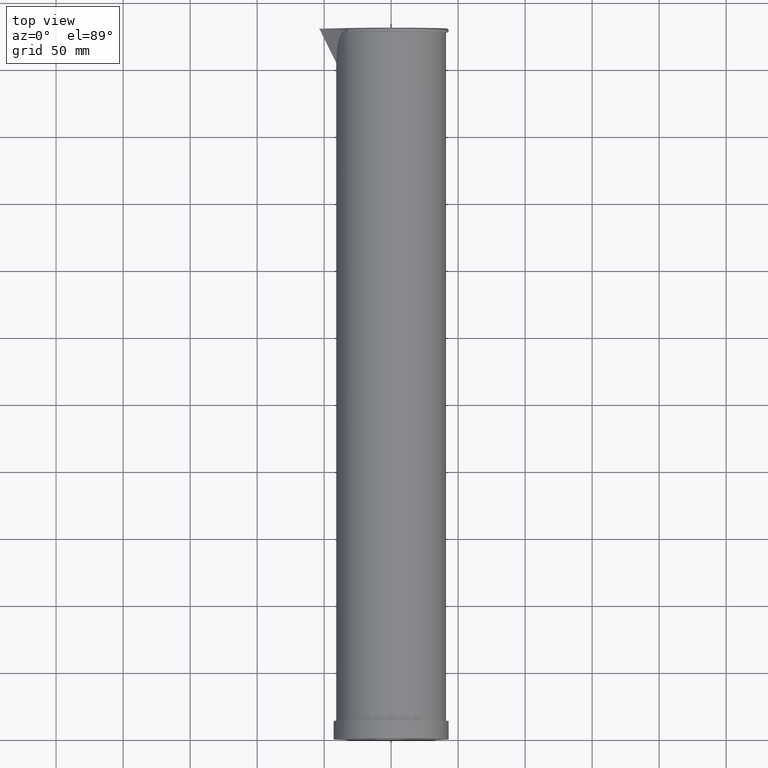
[diagram: clean part render]
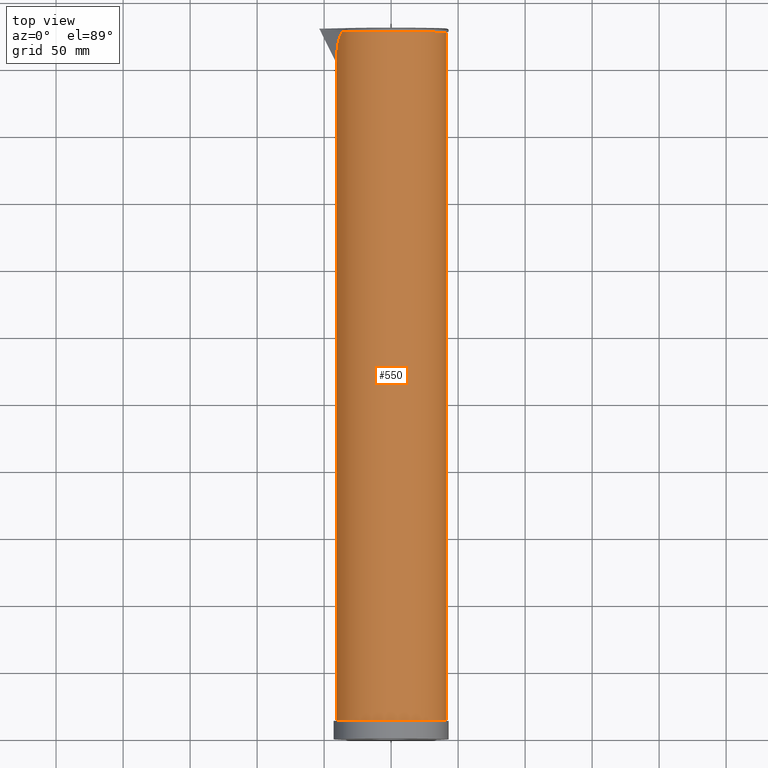
[diagram: same view with one face highlighted and labeled with its STEP entity id]
A machine part, top view. The second image highlights one B-rep face of the part: STEP entity #550.
In plain terms, the highlighted cylindrical surface (bore or boss wall) has radius 40.9575 mm, axis along (0, 1, 0).
Its self-contained STEP definition (entity closure, byte-faithful):
#461=CARTESIAN_POINT('',(84.763577732862657,36.315100106766323,10.691839503963482));
#462=DIRECTION('',(0.0,0.0,1.0));
#463=DIRECTION('',(-1.0,0.0,0.0));
#464=AXIS2_PLACEMENT_3D('',#461,#462,#463);
#465=CYLINDRICAL_SURFACE('',#464,1.612499998753373);
#466=CARTESIAN_POINT('',(86.376077731616036,36.315100106766323,6.972227477893022));
#467=VERTEX_POINT('',#466);
#468=CARTESIAN_POINT('',(84.763577732862657,36.315100106766323,6.972227477893022));
#469=DIRECTION('',(0.0,0.0,1.0));
#470=DIRECTION('',(-1.0,0.0,0.0));
#471=AXIS2_PLACEMENT_3D('',#468,#469,#470);
#472=CIRCLE('',#471,1.612499998753373);
#473=EDGE_CURVE('',#467,#467,#472,.T.);
#474=ORIENTED_EDGE('',*,*,#473,.T.);
#475=EDGE_LOOP('',(#474));
#476=FACE_OUTER_BOUND('',#475,.T.);
#477=CARTESIAN_POINT('',(83.503457035888871,35.308992719398965,27.194482091736973));
#478=VERTEX_POINT('',#477);
#479=CARTESIAN_POINT('',(83.503457034692588,37.321207492476766,27.194482091736973));
#480=VERTEX_POINT('',#479);
#481=CARTESIAN_POINT('',(84.763577732862657,36.315100106614423,27.194482091736973));
#482=DIRECTION('',(0.0,0.0,1.0));
#483=DIRECTION('',(0.0,1.0,0.0));
#484=AXIS2_PLACEMENT_3D('',#481,#482,#483);
#485=CIRCLE('',#484,1.612499998601471);
#486=EDGE_CURVE('',#478,#480,#485,.T.);
#487=ORIENTED_EDGE('',*,*,#486,.F.);
#488=CARTESIAN_POINT('',(83.362633159531455,35.516657514866367,27.204798331771730));
#489=VERTEX_POINT('',#488);
#490=CARTESIAN_POINT('',(83.362633166210372,35.516657518255982,27.204798326573773));
#491=CARTESIAN_POINT('',(83.384257401159573,35.478715711423483,27.207841541845045));
#492=CARTESIAN_POINT('',(83.403400819535776,35.447759850098421,27.207303572955915));
#493=CARTESIAN_POINT('',(83.453629773279872,35.373828039972018,27.199701085255104));
#494=CARTESIAN_POINT('',(83.478524412708879,35.340220116022749,27.194482091736969));
#495=CARTESIAN_POINT('',(83.503457035954980,35.308992719255158,27.194482091736969));
#496=B_SPLINE_CURVE_WITH_KNOTS('',3,(#490,#491,#492,#493,#494,#495),.UNSPECIFIED.,.F.,.U.,(4,2,4),(-0.641390351329199,-0.304493710892186,0.0),.UNSPECIFIED.);
#497=EDGE_CURVE('',#489,#478,#496,.T.);
#498=ORIENTED_EDGE('',*,*,#497,.F.);
#499=CARTESIAN_POINT('',(83.324302946331471,35.588020788972216,27.201163563481281));
#500=VERTEX_POINT('',#499);
#501=CARTESIAN_POINT('',(83.324302946201797,35.588020788904814,27.201163563346860));
#502=CARTESIAN_POINT('',(83.330390111432521,35.575971067198253,27.201333920342627));
#503=CARTESIAN_POINT('',(83.336642957702935,35.563970737719366,27.201751142308577));
#504=CARTESIAN_POINT('',(83.349413328184227,35.540195257857839,27.202986725818274));
#505=CARTESIAN_POINT('',(83.355959020542457,35.528367950883329,27.203808239504230));
#506=CARTESIAN_POINT('',(83.362633165143436,35.516657520128035,27.204798326424012));
#507=B_SPLINE_CURVE_WITH_KNOTS('',3,(#501,#502,#503,#504,#505,#506),.UNSPECIFIED.,.F.,.U.,(4,2,4),(-0.205882854644597,-0.102984776770283,0.0),.UNSPECIFIED.);
#508=EDGE_CURVE('',#500,#489,#507,.T.);
#509=ORIENTED_EDGE('',*,*,#508,.F.);
#510=CARTESIAN_POINT('',(83.151077734255651,36.315100107620090,26.308479159736304));
#511=VERTEX_POINT('',#510);
#512=CARTESIAN_POINT('',(84.763577732862657,36.315100106614423,23.045924579121543));
#513=DIRECTION('',(0.714574982270093,0.603862678607960,0.353174829366584));
#514=DIRECTION('',(0.269753532083915,0.227959408725256,-0.935557341856652));
#515=AXIS2_PLACEMENT_3D('',#512,#513,#514);
#516=ELLIPSE('',#515,4.565727408981762,1.612499998601471);
#517=EDGE_CURVE('',#511,#500,#516,.T.);
#518=ORIENTED_EDGE('',*,*,#517,.F.);
#519=CARTESIAN_POINT('',(83.324302948644998,37.042179428942951,27.201163563273049));
#520=VERTEX_POINT('',#519);
#521=CARTESIAN_POINT('',(84.763577732862657,36.315100106614423,23.045924575682537));
#522=DIRECTION('',(0.714574982270093,-0.603862678607960,0.353174829366584));
#523=DIRECTION('',(-0.269753532083915,0.227959408725256,0.935557341856652));
#524=AXIS2_PLACEMENT_3D('',#521,#522,#523);
#525=ELLIPSE('',#524,4.565727408981762,1.612499998601472);
#526=EDGE_CURVE('',#520,#511,#525,.T.);
#527=ORIENTED_EDGE('',*,*,#526,.F.);
#528=CARTESIAN_POINT('',(83.362633160265929,37.113542699845731,27.204798331137034));
#529=VERTEX_POINT('',#528);
#530=CARTESIAN_POINT('',(83.362633165835931,37.113542694619639,27.204798325827777));
#531=CARTESIAN_POINT('',(83.355959018175099,37.101832258519146,27.203808238530147));
#532=CARTESIAN_POINT('',(83.349413322823395,37.090004946000427,27.202986724604617));
#533=CARTESIAN_POINT('',(83.336642953140540,37.066229467013017,27.201751141644209));
#534=CARTESIAN_POINT('',(83.330390110360881,37.054229144121052,27.201333920058822));
#535=CARTESIAN_POINT('',(83.324302948435815,37.042179429050137,27.201163563165778));
#536=B_SPLINE_CURVE_WITH_KNOTS('',3,(#530,#531,#532,#533,#534,#535),.UNSPECIFIED.,.F.,.U.,(4,2,4),(-0.205842700083937,-0.102878450333661,-0.000000986320085),.UNSPECIFIED.);
#537=EDGE_CURVE('',#529,#520,#536,.T.);
#538=ORIENTED_EDGE('',*,*,#537,.F.);
#539=CARTESIAN_POINT('',(83.503457034585509,37.321207492562259,27.194482091736969));
#540=CARTESIAN_POINT('',(83.477977713361014,37.289295372140209,27.194482091796104));
#541=CARTESIAN_POINT('',(83.452551938941838,37.254916212397823,27.199932759945330));
#542=CARTESIAN_POINT('',(83.403852970571506,37.182966619984171,27.207162068356531));
#543=CARTESIAN_POINT('',(83.384614519032837,37.152111099800571,27.207891798806159));
#544=CARTESIAN_POINT('',(83.362633166896543,37.113542696480621,27.204798325976675));
#545=B_SPLINE_CURVE_WITH_KNOTS('',3,(#539,#540,#541,#542,#543,#544),.UNSPECIFIED.,.F.,.U.,(4,2,4),(-0.678114515757684,-0.339091812791313,-5.696997E-009),.UNSPECIFIED.);
#546=EDGE_CURVE('',#480,#529,#545,.T.);
#547=ORIENTED_EDGE('',*,*,#546,.F.);
#548=EDGE_LOOP('',(#487,#498,#509,#518,#527,#538,#547));
#549=FACE_BOUND('',#548,.T.);
#550=ADVANCED_FACE('',(#476,#549),#465,.T.);